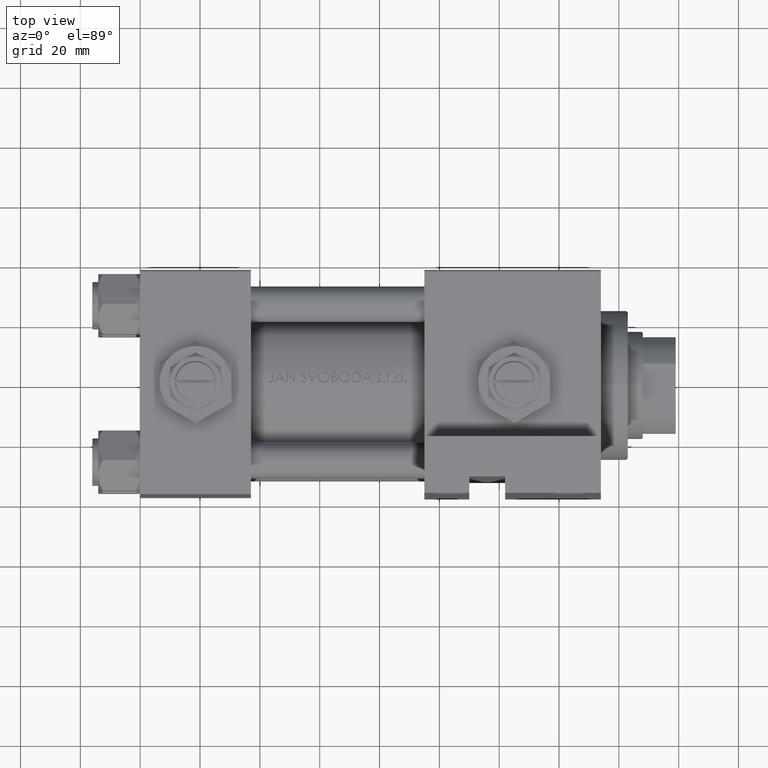
[diagram: clean part render]
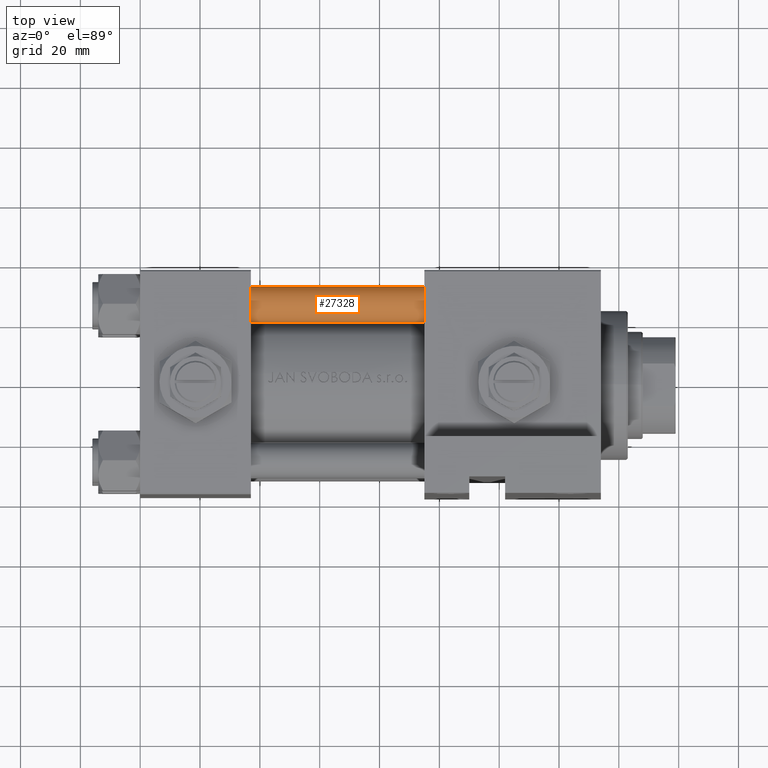
[diagram: same view with one face highlighted and labeled with its STEP entity id]
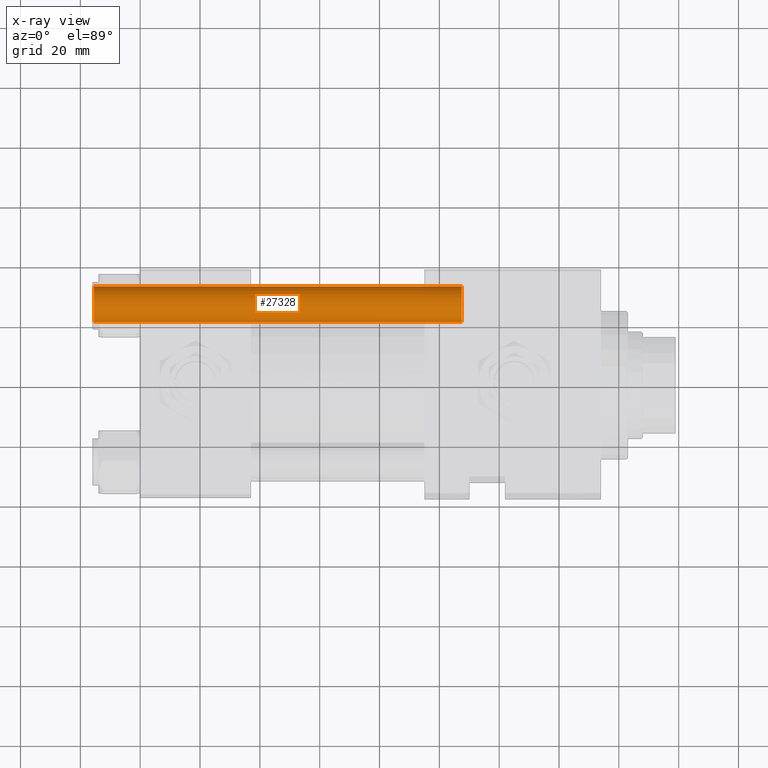
[diagram: x-ray of the same camera — body ghosted, the highlighted face saturated]
A machine part, top view. The second image highlights one B-rep face of the part: STEP entity #27328.
The next image is the same camera in x-ray: the body ghosted, the highlighted face saturated — about 0% of this face is hidden behind the body in this view.
In plain terms, the highlighted cylindrical surface (edge-blend (fillet) strip) has radius 6 mm, axis along (1, -0, 0).
Its self-contained STEP definition (entity closure, byte-faithful):
#473 = CARTESIAN_POINT ( 'NONE',  ( 0.000000000000000000, 0.000000000000000000, 124.0000000000000000 ) ) ;
#953 = LINE ( 'NONE', #38182, #26044 ) ;
#2656 = AXIS2_PLACEMENT_3D ( 'NONE', #44139, #13730, #10459 ) ;
#6063 = AXIS2_PLACEMENT_3D ( 'NONE', #24743, #36308, #9149 ) ;
#6215 = VERTEX_POINT ( 'NONE', #22895 ) ;
#6245 = LINE ( 'NONE', #29403, #46180 ) ;
#6708 = EDGE_CURVE ( 'NONE', #35396, #18051, #9172, .T. ) ;
#8981 = CARTESIAN_POINT ( 'NONE',  ( 6.000000000000000888, 7.347880794884120722E-16, 123.5000000000000426 ) ) ;
#9149 = DIRECTION ( 'NONE',  ( 1.000000000000000000, 0.000000000000000000, 0.000000000000000000 ) ) ;
#9172 = CIRCLE ( 'NONE', #6063, 6.000000000000000888 ) ;
#10459 = DIRECTION ( 'NONE',  ( 1.000000000000000000, 0.000000000000000000, 0.000000000000000000 ) ) ;
#13730 = DIRECTION ( 'NONE',  ( -0.000000000000000000, -0.000000000000000000, 1.000000000000000000 ) ) ;
#13809 = DIRECTION ( 'NONE',  ( -0.000000000000000000, -0.000000000000000000, -1.000000000000000000 ) ) ;
#15808 = DIRECTION ( 'NONE',  ( -1.000000000000000000, 0.000000000000000000, 0.000000000000000000 ) ) ;
#17111 = CIRCLE ( 'NONE', #2656, 6.000000000000000888 ) ;
#18051 = VERTEX_POINT ( 'NONE', #18647 ) ;
#18647 = CARTESIAN_POINT ( 'NONE',  ( -6.000000000000000888, 0.000000000000000000, 123.5000000000000426 ) ) ;
#21778 = AXIS2_PLACEMENT_3D ( 'NONE', #473, #42688, #15808 ) ;
#22895 = CARTESIAN_POINT ( 'NONE',  ( 6.000000000000000888, 7.347880794884120722E-16, 0.4999999999999865663 ) ) ;
#23070 = EDGE_LOOP ( 'NONE', ( #46313, #35956, #42584, #34061 ) ) ;
#23823 = FACE_OUTER_BOUND ( 'NONE', #23070, .T. ) ;
#24743 = CARTESIAN_POINT ( 'NONE',  ( 0.000000000000000000, 0.000000000000000000, 123.5000000000000426 ) ) ;
#26044 = VECTOR ( 'NONE', #34897, 1000.000000000000000 ) ;
#27328 = ADVANCED_FACE ( 'NONE', ( #23823 ), #39161, .T. ) ;
#29403 = CARTESIAN_POINT ( 'NONE',  ( -6.000000000000000888, 0.000000000000000000, 124.0000000000000000 ) ) ;
#30311 = VERTEX_POINT ( 'NONE', #38150 ) ;
#31251 = EDGE_CURVE ( 'NONE', #30311, #6215, #17111, .T. ) ;
#34061 = ORIENTED_EDGE ( 'NONE', *, *, #31251, .T. ) ;
#34322 = EDGE_CURVE ( 'NONE', #35396, #6215, #953, .T. ) ;
#34897 = DIRECTION ( 'NONE',  ( -0.000000000000000000, -0.000000000000000000, -1.000000000000000000 ) ) ;
#35396 = VERTEX_POINT ( 'NONE', #8981 ) ;
#35956 = ORIENTED_EDGE ( 'NONE', *, *, #6708, .T. ) ;
#36308 = DIRECTION ( 'NONE',  ( 0.000000000000000000, 0.000000000000000000, -1.000000000000000000 ) ) ;
#37101 = EDGE_CURVE ( 'NONE', #18051, #30311, #6245, .T. ) ;
#38150 = CARTESIAN_POINT ( 'NONE',  ( -6.000000000000000888, 0.000000000000000000, 0.4999999999999865663 ) ) ;
#38182 = CARTESIAN_POINT ( 'NONE',  ( 6.000000000000000888, 7.347880794884120722E-16, 124.0000000000000000 ) ) ;
#39161 = CYLINDRICAL_SURFACE ( 'NONE', #21778, 6.000000000000000888 ) ;
#42584 = ORIENTED_EDGE ( 'NONE', *, *, #37101, .T. ) ;
#42688 = DIRECTION ( 'NONE',  ( -0.000000000000000000, -0.000000000000000000, -1.000000000000000000 ) ) ;
#44139 = CARTESIAN_POINT ( 'NONE',  ( 0.000000000000000000, 0.000000000000000000, 0.4999999999999865663 ) ) ;
#46180 = VECTOR ( 'NONE', #13809, 1000.000000000000000 ) ;
#46313 = ORIENTED_EDGE ( 'NONE', *, *, #34322, .F. ) ;